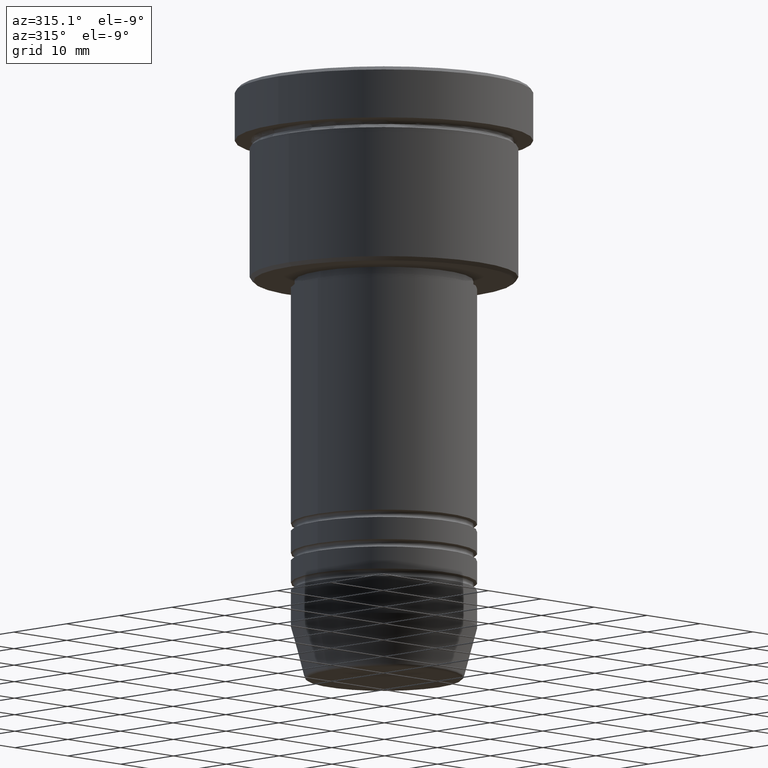
[diagram: clean part render]
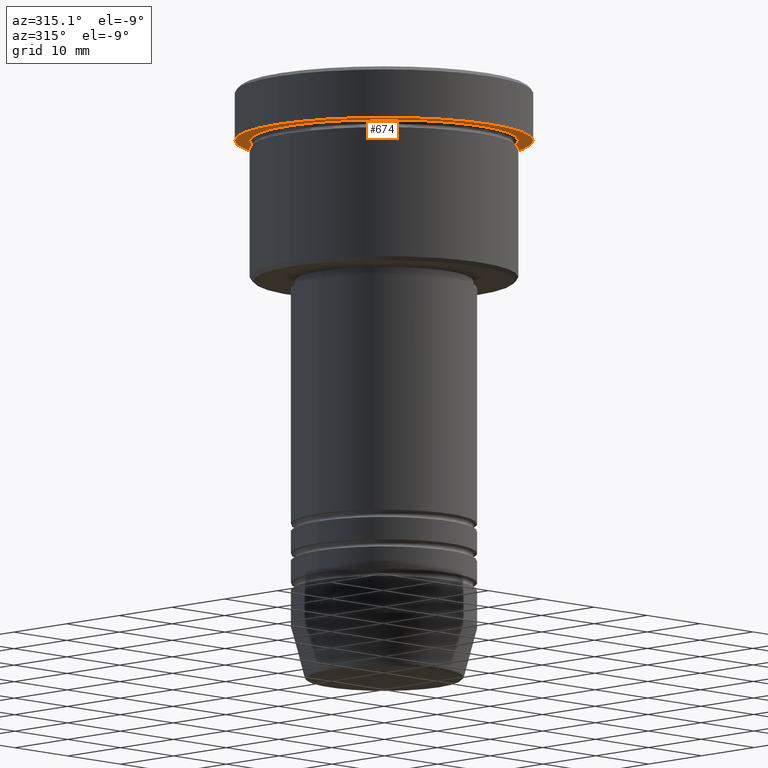
[diagram: same view with one face highlighted and labeled with its STEP entity id]
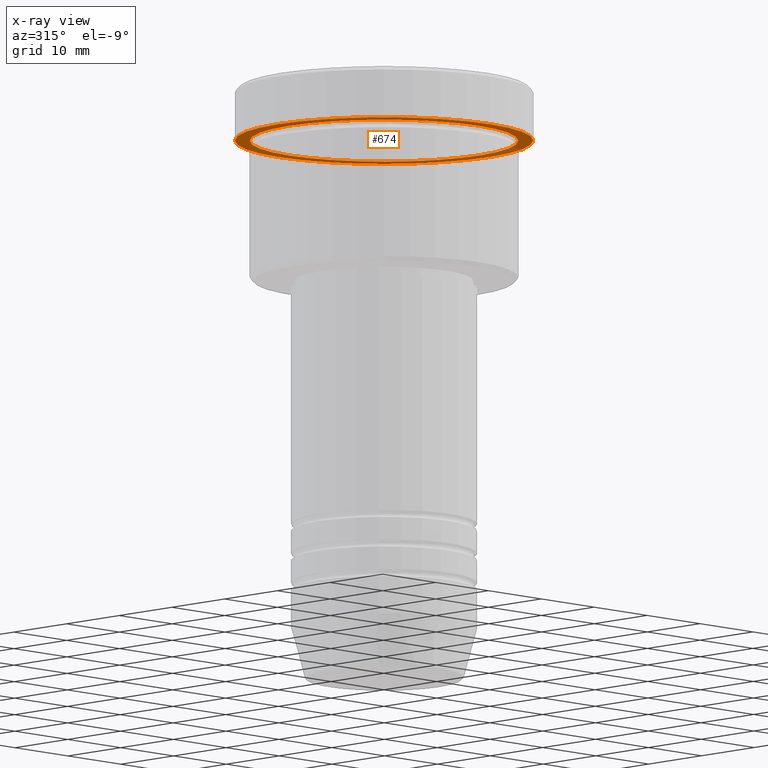
[diagram: x-ray of the same camera — body ghosted, the highlighted face saturated]
A machine part, auxiliary view. The second image highlights one B-rep face of the part: STEP entity #674.
The next image is the same camera in x-ray: the body ghosted, the highlighted face saturated — about 38% of this face is hidden behind the body in this view.
In plain terms, the highlighted planar face has unit normal (0, 0, -1).
Its self-contained STEP definition (entity closure, byte-faithful):
#72 = AXIS2_PLACEMENT_3D ( 'NONE', #156, #616, #418 ) ;
#121 = VERTEX_POINT ( 'NONE', #661 ) ;
#156 = CARTESIAN_POINT ( 'NONE',  ( 0.000000000000000000, 20.00000000000000000, -6.999999999999995559 ) ) ;
#166 = CARTESIAN_POINT ( 'NONE',  ( 20.00000000000000000, 0.000000000000000000, -6.999999999999995559 ) ) ;
#169 = CARTESIAN_POINT ( 'NONE',  ( 0.000000000000000000, 0.000000000000000000, -6.999999999999995559 ) ) ;
#192 = CIRCLE ( 'NONE', #716, 18.00000000000000000 ) ;
#195 = CARTESIAN_POINT ( 'NONE',  ( -18.00000000000000000, 0.000000000000000000, -6.999999999999995559 ) ) ;
#196 = CIRCLE ( 'NONE', #1162, 20.00000000000000000 ) ;
#227 = DIRECTION ( 'NONE',  ( -0.000000000000000000, -0.000000000000000000, 1.000000000000000000 ) ) ;
#248 = DIRECTION ( 'NONE',  ( 1.000000000000000000, 0.000000000000000000, 0.000000000000000000 ) ) ;
#282 = DIRECTION ( 'NONE',  ( -0.000000000000000000, -0.000000000000000000, 1.000000000000000000 ) ) ;
#303 = CARTESIAN_POINT ( 'NONE',  ( 18.00000000000000000, 2.204364238465235428E-15, -6.999999999999995559 ) ) ;
#310 = EDGE_CURVE ( 'NONE', #592, #121, #633, .T. ) ;
#413 = CARTESIAN_POINT ( 'NONE',  ( 0.000000000000000000, 0.000000000000000000, -6.999999999999995559 ) ) ;
#418 = DIRECTION ( 'NONE',  ( -1.000000000000000000, 0.000000000000000000, -0.000000000000000000 ) ) ;
#429 = DIRECTION ( 'NONE',  ( -1.000000000000000000, 0.000000000000000000, 0.000000000000000000 ) ) ;
#430 = EDGE_LOOP ( 'NONE', ( #583, #483 ) ) ;
#436 = CARTESIAN_POINT ( 'NONE',  ( 0.000000000000000000, 0.000000000000000000, -6.999999999999995559 ) ) ;
#483 = ORIENTED_EDGE ( 'NONE', *, *, #904, .F. ) ;
#484 = AXIS2_PLACEMENT_3D ( 'NONE', #169, #282, #640 ) ;
#488 = VERTEX_POINT ( 'NONE', #303 ) ;
#551 = AXIS2_PLACEMENT_3D ( 'NONE', #705, #227, #248 ) ;
#583 = ORIENTED_EDGE ( 'NONE', *, *, #310, .F. ) ;
#592 = VERTEX_POINT ( 'NONE', #166 ) ;
#613 = FACE_OUTER_BOUND ( 'NONE', #430, .T. ) ;
#616 = DIRECTION ( 'NONE',  ( 0.000000000000000000, 0.000000000000000000, -1.000000000000000000 ) ) ;
#626 = PLANE ( 'NONE',  #72 ) ;
#633 = CIRCLE ( 'NONE', #551, 20.00000000000000000 ) ;
#640 = DIRECTION ( 'NONE',  ( -1.000000000000000000, 0.000000000000000000, 0.000000000000000000 ) ) ;
#661 = CARTESIAN_POINT ( 'NONE',  ( -20.00000000000000000, 2.449293598294706513E-15, -6.999999999999995559 ) ) ;
#674 = ADVANCED_FACE ( 'NONE', ( #983, #613 ), #626, .T. ) ;
#676 = DIRECTION ( 'NONE',  ( -0.000000000000000000, -0.000000000000000000, 1.000000000000000000 ) ) ;
#705 = CARTESIAN_POINT ( 'NONE',  ( 0.000000000000000000, 0.000000000000000000, -6.999999999999995559 ) ) ;
#716 = AXIS2_PLACEMENT_3D ( 'NONE', #436, #956, #429 ) ;
#735 = EDGE_LOOP ( 'NONE', ( #872, #1096 ) ) ;
#741 = VERTEX_POINT ( 'NONE', #195 ) ;
#768 = EDGE_CURVE ( 'NONE', #488, #741, #991, .T. ) ;
#872 = ORIENTED_EDGE ( 'NONE', *, *, #1152, .T. ) ;
#904 = EDGE_CURVE ( 'NONE', #121, #592, #196, .T. ) ;
#956 = DIRECTION ( 'NONE',  ( -0.000000000000000000, -0.000000000000000000, 1.000000000000000000 ) ) ;
#983 = FACE_BOUND ( 'NONE', #735, .T. ) ;
#991 = CIRCLE ( 'NONE', #484, 18.00000000000000000 ) ;
#1032 = DIRECTION ( 'NONE',  ( 1.000000000000000000, 0.000000000000000000, 0.000000000000000000 ) ) ;
#1096 = ORIENTED_EDGE ( 'NONE', *, *, #768, .T. ) ;
#1152 = EDGE_CURVE ( 'NONE', #741, #488, #192, .T. ) ;
#1162 = AXIS2_PLACEMENT_3D ( 'NONE', #413, #676, #1032 ) ;